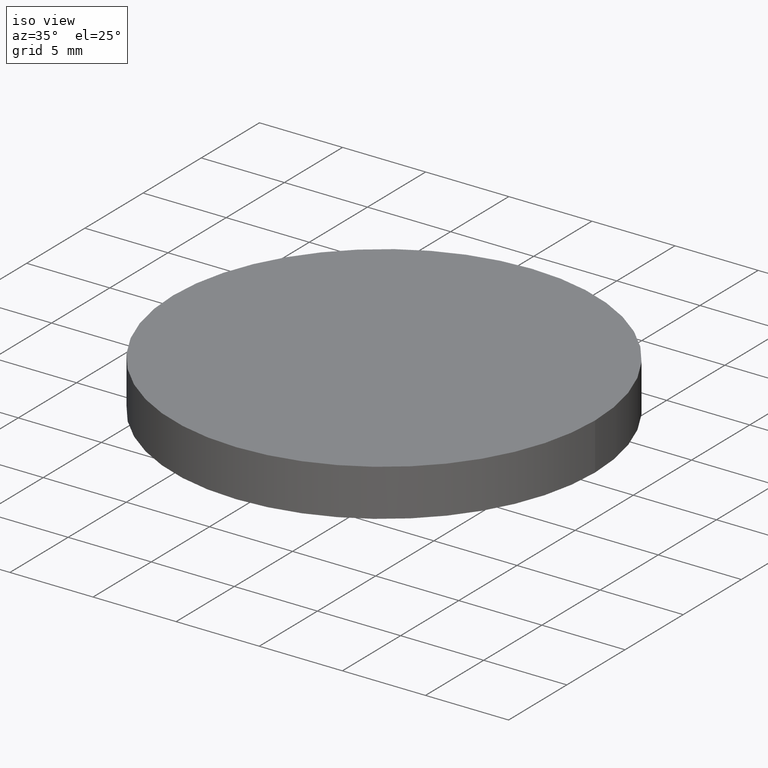
[diagram: clean part render]
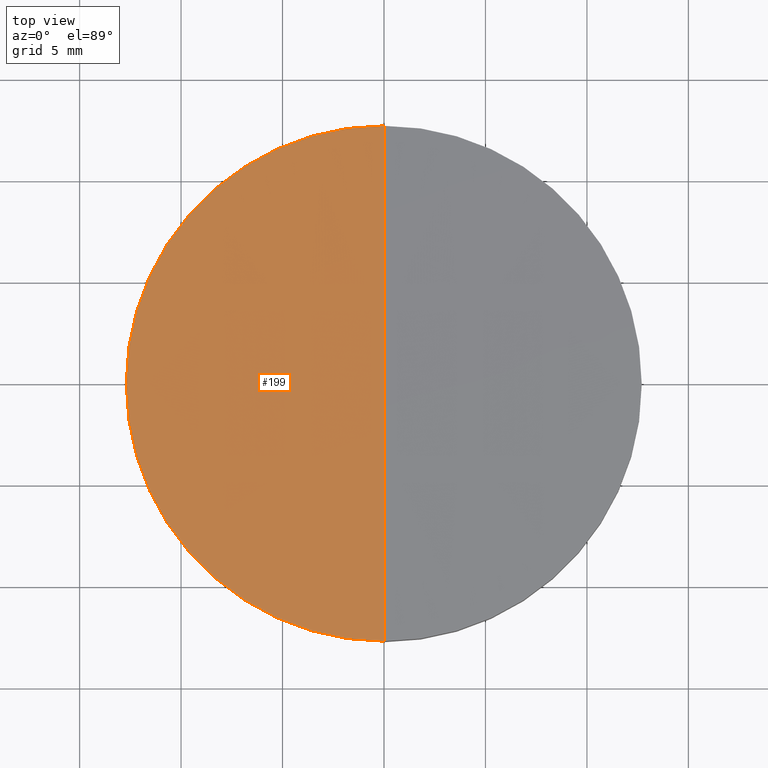
[diagram: tour spotlight — one face highlighted and labeled with its STEP entity id]
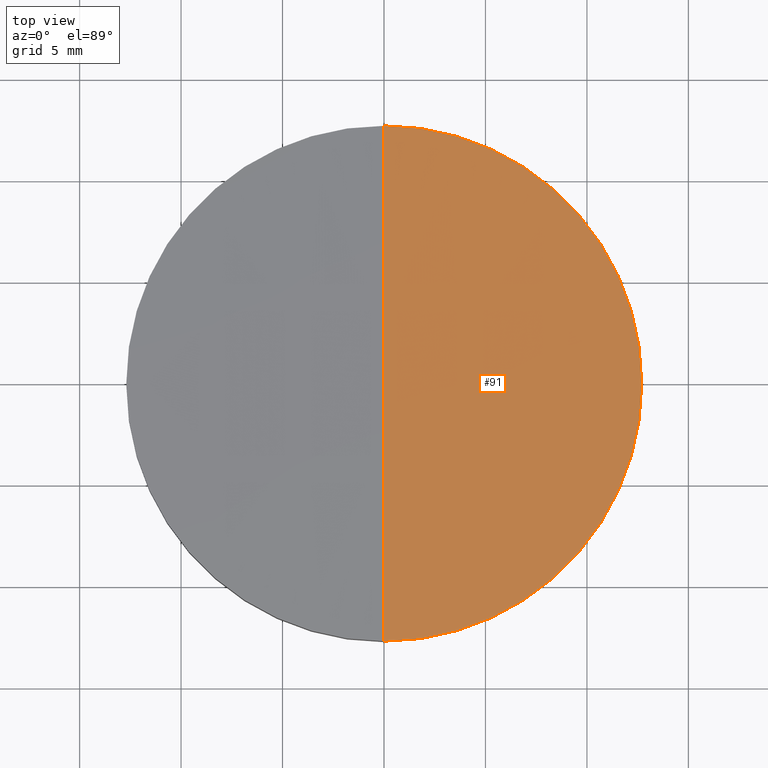
[diagram: tour spotlight — one face highlighted and labeled with its STEP entity id]
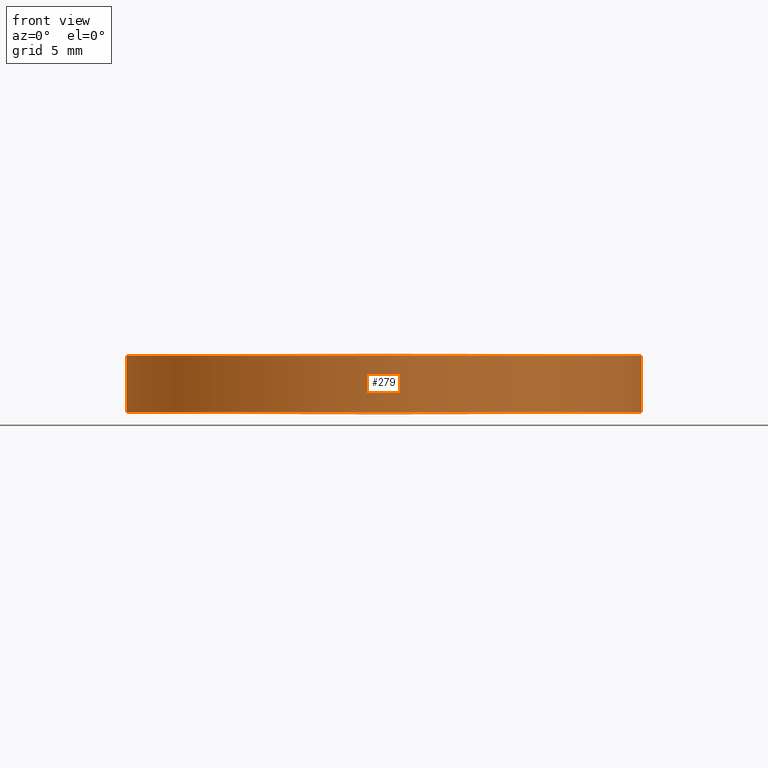
[diagram: tour spotlight — one face highlighted and labeled with its STEP entity id]
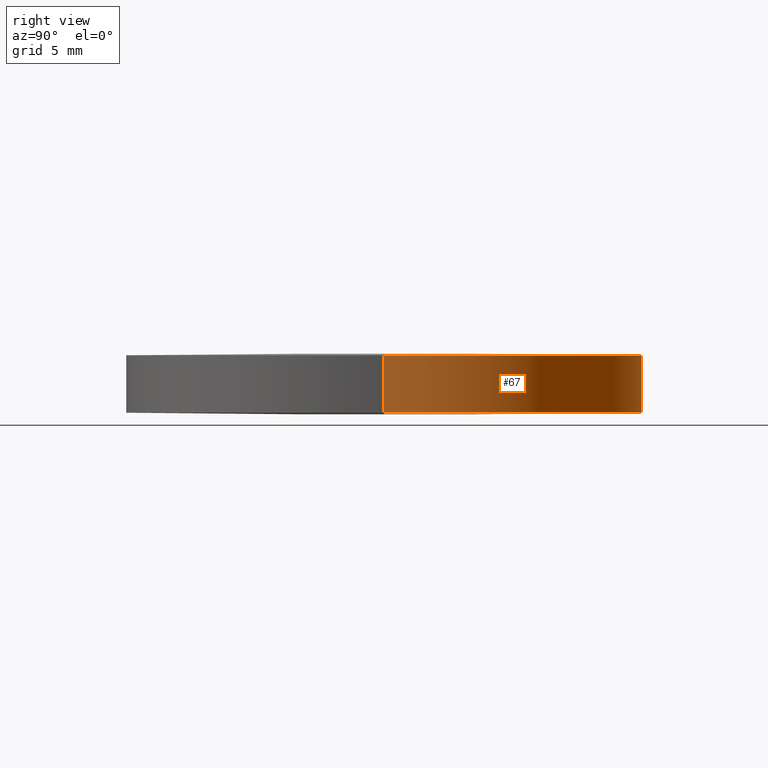
[diagram: tour spotlight — one face highlighted and labeled with its STEP entity id]
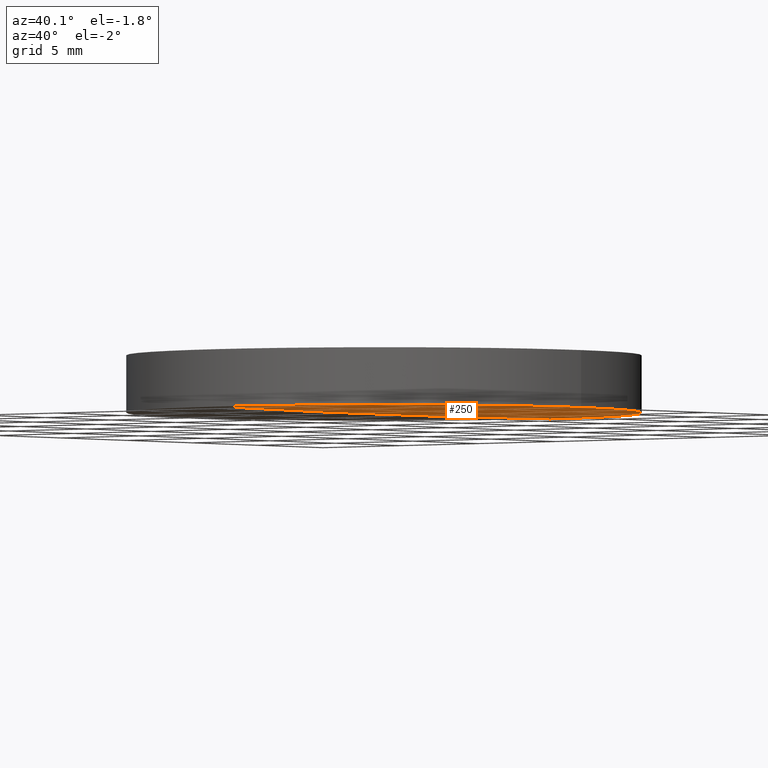
[diagram: tour spotlight — one face highlighted and labeled with its STEP entity id]
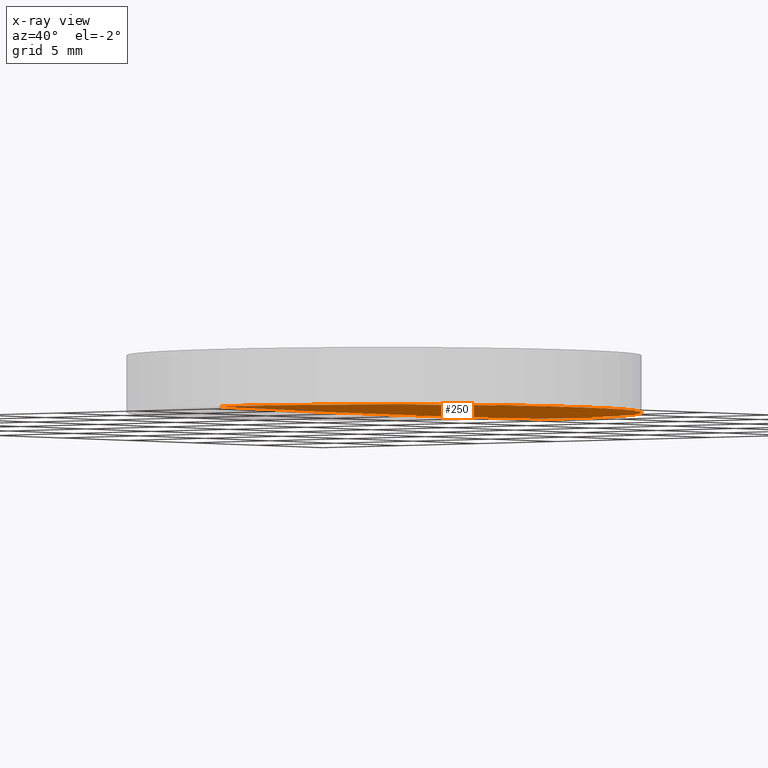
[diagram: x-ray of the same camera — body ghosted, this tour face saturated]
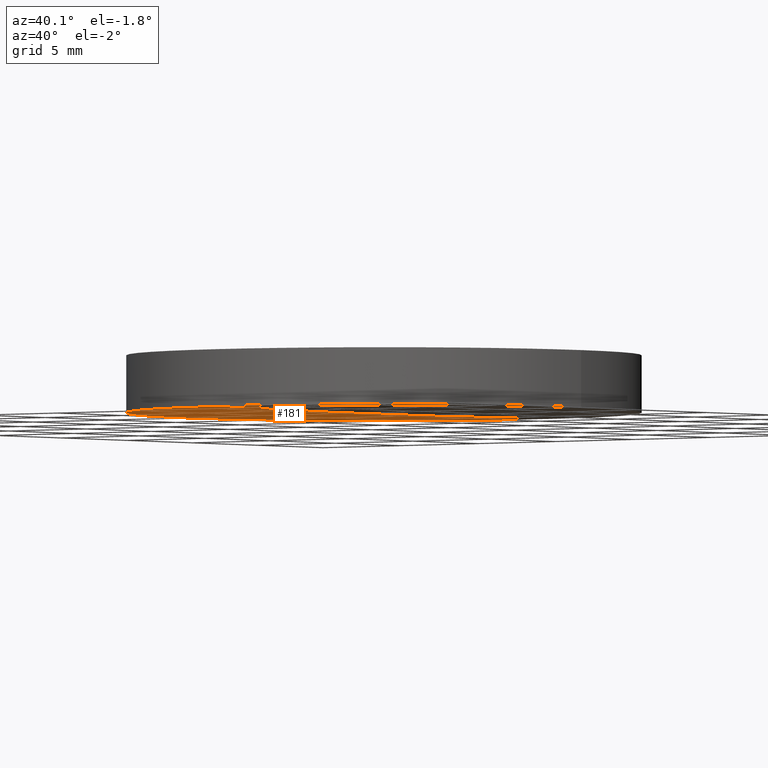
[diagram: tour spotlight — one face highlighted and labeled with its STEP entity id]
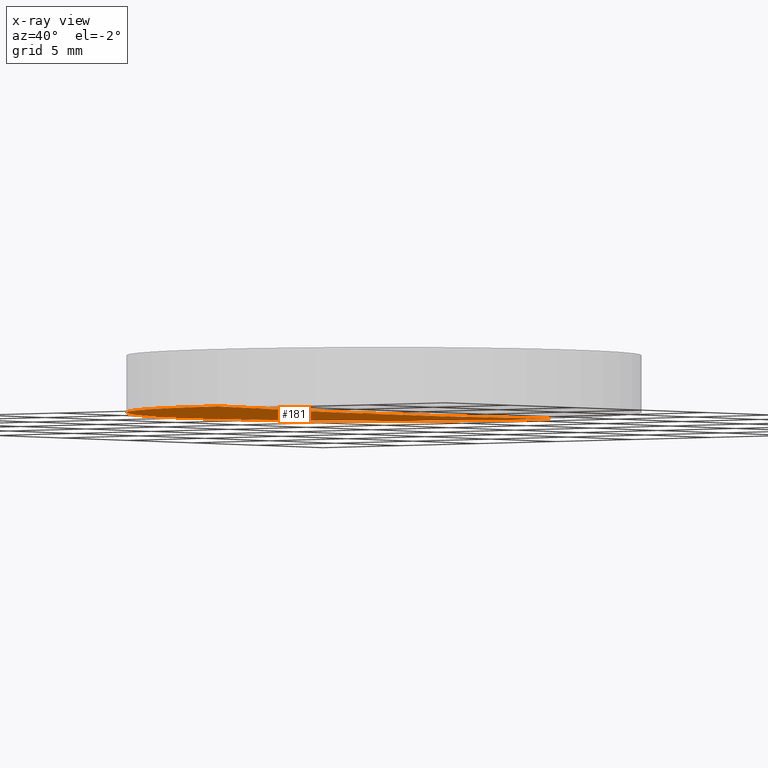
[diagram: x-ray of the same camera — body ghosted, this tour face saturated]
A machine part: a face-by-face anatomy tour. The part has 6 B-rep faces; the first image is the clean iso view, then the 6 largest visible faces are spotlighted one at a time (largest first), each with its STEP entity span.

Face 1 — top view, entity #199. In plain terms, the highlighted face is a freeform B-spline surface patch.
Definition (entity closure, byte-faithful):
#10 = CARTESIAN_POINT ( 'NONE',  ( 4.996003610813200500E-016, 2.442490654175340100E-015, 2.915258389649820100 ) ) ;
#45 = CARTESIAN_POINT ( 'NONE',  ( -12.69999999999999900, 3.997792089092478900E-015, 2.915258389649820100 ) ) ;
#48 = CARTESIAN_POINT ( 'NONE',  ( 0.0000000000000000000, -12.70000000000168900, 2.915258389649804100 ) ) ;
#51 = ORIENTED_EDGE ( 'NONE', *, *, #161, .F. ) ;
#52 = VERTEX_POINT ( 'NONE', #48 ) ;
#55 = CARTESIAN_POINT ( 'NONE',  ( -12.77658382230899300, -4.284390731756754900, 2.943166800276382200 ) ) ;
#59 = CARTESIAN_POINT ( 'NONE',  ( -4.258503345560082000, 12.85239078956250400, 2.913212419306642900 ) ) ;
#73 = EDGE_LOOP ( 'NONE', ( #51, #138, #287 ) ) ;
#77 = DIRECTION ( 'NONE',  ( -1.000000000000000000, 0.0000000000000000000, 0.0000000000000000000 ) ) ;
#97 = CARTESIAN_POINT ( 'NONE',  ( -8.517946429816911200, -4.284390731756754900, 3.000342472326801500 ) ) ;
#98 = CARTESIAN_POINT ( 'NONE',  ( -12.77658382230899300, 4.284390731757091500, 2.943166800276381300 ) ) ;
#116 = CARTESIAN_POINT ( 'NONE',  ( -8.517946429816911200, 4.284390731757091500, 3.000342472326800600 ) ) ;
#129 = CIRCLE ( 'NONE', #156, 12.69999999999999900 ) ;
#136 = AXIS2_PLACEMENT_3D ( 'NONE', #10, #261, #139 ) ;
#138 = ORIENTED_EDGE ( 'NONE', *, *, #252, .T. ) ;
#139 = DIRECTION ( 'NONE',  ( 1.000000000000000000, 0.0000000000000000000, 0.0000000000000000000 ) ) ;
#140 = DIRECTION ( 'NONE',  ( -0.0000000000000000000, -0.0000000000000000000, -1.000000000000000000 ) ) ;
#144 = CARTESIAN_POINT ( 'NONE',  ( 0.0000000000000000000, -12.85239078956216800, 2.913212419306643300 ) ) ;
#155 = VERTEX_POINT ( 'NONE', #45 ) ;
#156 = AXIS2_PLACEMENT_3D ( 'NONE', #283, #140, #211 ) ;
#160 = CARTESIAN_POINT ( 'NONE',  ( 0.0000000000000000000, 12.70000000000191800, 2.915258389649804100 ) ) ;
#161 = EDGE_CURVE ( 'NONE', #52, #155, #225, .T. ) ;
#162 = VERTEX_POINT ( 'NONE', #160 ) ;
#163 = CARTESIAN_POINT ( 'NONE',  ( -8.516910752289518900, -12.85239078956216800, 2.884627415225800000 ) ) ;
#165 = CARTESIAN_POINT ( 'NONE',  ( 0.0000000000000000000, 4.284390731757091500, 3.028930952415224800 ) ) ;
#172 = DIRECTION ( 'NONE',  ( 0.0000000000000000000, -1.000000000000000000, 0.0000000000000000000 ) ) ;
#175 = EDGE_CURVE ( 'NONE', #155, #162, #129, .T. ) ;
#185 = CARTESIAN_POINT ( 'NONE',  ( 0.0000000000000000000, 12.85239078956250600, 2.913212419306643300 ) ) ;
#187 = CARTESIAN_POINT ( 'NONE',  ( -4.258503345560082000, -12.85239078956216800, 2.913212419306642900 ) ) ;
#189 = CARTESIAN_POINT ( 'NONE',  ( -4.259021190156979700, 4.284390731757091500, 3.028930952415225300 ) ) ;
#191 = CARTESIAN_POINT ( 'NONE',  ( 0.0000000000000000000, 2.273736754432320100E-013, -948.7000000000000500 ) ) ;
#199 = ADVANCED_FACE ( 'NONE', ( #220 ), #206, .T. ) ;
#203 = CIRCLE ( 'NONE', #232, 951.7000000000000500 ) ;
#206 =( BOUNDED_SURFACE ( )  B_SPLINE_SURFACE ( 3, 3, ( 
 ( #144, #187, #163, #233 ),
 ( #240, #235, #97, #55 ),
 ( #165, #189, #116, #98 ),
 ( #185, #59, #213, #209 ) ),
 .UNSPECIFIED., .F., .F., .T. ) 
 B_SPLINE_SURFACE_WITH_KNOTS ( ( 4, 4 ),
 ( 4, 4 ),
 ( 0.0000000000000000000, 1.000000000000000000 ),
 ( 0.0000000000000000000, 1.000000000000000000 ),
 .UNSPECIFIED. ) 
 GEOMETRIC_REPRESENTATION_ITEM ( )  RATIONAL_B_SPLINE_SURFACE ( (
 ( 1.000000000000000000, 0.9999849808218425100, 0.9999849808218425100, 1.000000000000000000),
 ( 0.9999392052252507000, 0.9999241869601808200, 0.9999241869601808200, 0.9999392052252507000),
 ( 0.9999392052252507000, 0.9999241869601808200, 0.9999241869601808200, 0.9999392052252507000),
 ( 1.000000000000000000, 0.9999849808218425100, 0.9999849808218425100, 1.000000000000000000) ) ) 
 REPRESENTATION_ITEM ( '' )  SURFACE ( )  );
#209 = CARTESIAN_POINT ( 'NONE',  ( -12.77503034684978200, 12.85239078956250600, 2.827458695033924200 ) ) ;
#211 = DIRECTION ( 'NONE',  ( 1.000000000000000000, 0.0000000000000000000, 0.0000000000000000000 ) ) ;
#213 = CARTESIAN_POINT ( 'NONE',  ( -8.516910752289518900, 12.85239078956250400, 2.884627415225800000 ) ) ;
#220 = FACE_OUTER_BOUND ( 'NONE', #73, .T. ) ;
#225 = CIRCLE ( 'NONE', #136, 12.69999999999999900 ) ;
#232 = AXIS2_PLACEMENT_3D ( 'NONE', #191, #77, #172 ) ;
#233 = CARTESIAN_POINT ( 'NONE',  ( -12.77503034684978200, -12.85239078956216800, 2.827458695033924200 ) ) ;
#235 = CARTESIAN_POINT ( 'NONE',  ( -4.259021190156979700, -4.284390731756754900, 3.028930952415226100 ) ) ;
#240 = CARTESIAN_POINT ( 'NONE',  ( 0.0000000000000000000, -4.284390731756754900, 3.028930952415225700 ) ) ;
#252 = EDGE_CURVE ( 'NONE', #52, #162, #203, .T. ) ;
#261 = DIRECTION ( 'NONE',  ( -0.0000000000000000000, -0.0000000000000000000, -1.000000000000000000 ) ) ;
#283 = CARTESIAN_POINT ( 'NONE',  ( 4.996003610813200500E-016, 2.442490654175340100E-015, 2.915258389649820100 ) ) ;
#287 = ORIENTED_EDGE ( 'NONE', *, *, #175, .F. ) ;

Face 2 — top view, entity #91. In plain terms, the highlighted face is a freeform B-spline surface patch.
Definition (entity closure, byte-faithful):
#15 = CIRCLE ( 'NONE', #174, 12.69999999999999900 ) ;
#23 = CARTESIAN_POINT ( 'NONE',  ( 8.516910752289769300, -12.85239078956216800, 2.884627415225856900 ) ) ;
#25 =( BOUNDED_SURFACE ( )  B_SPLINE_SURFACE ( 3, 3, ( 
 ( #231, #23, #135, #112 ),
 ( #114, #49, #205, #88 ),
 ( #69, #256, #230, #257 ),
 ( #280, #202, #179, #276 ) ),
 .UNSPECIFIED., .F., .F., .F. ) 
 B_SPLINE_SURFACE_WITH_KNOTS ( ( 4, 4 ),
 ( 4, 4 ),
 ( 0.0000000000000000000, 1.000000000000000000 ),
 ( 0.0000000000000000000, 1.000000000000000000 ),
 .UNSPECIFIED. ) 
 GEOMETRIC_REPRESENTATION_ITEM ( )  RATIONAL_B_SPLINE_SURFACE ( (
 ( 1.000000000000000000, 0.9999849808218425100, 0.9999849808218425100, 1.000000000000000000),
 ( 0.9999392052252507000, 0.9999241869601808200, 0.9999241869601808200, 0.9999392052252507000),
 ( 0.9999392052252507000, 0.9999241869601808200, 0.9999241869601808200, 0.9999392052252507000),
 ( 1.000000000000000000, 0.9999849808218425100, 0.9999849808218425100, 1.000000000000000000) ) ) 
 REPRESENTATION_ITEM ( '' )  SURFACE ( )  );
#42 = AXIS2_PLACEMENT_3D ( 'NONE', #183, #87, #137 ) ;
#43 = VERTEX_POINT ( 'NONE', #157 ) ;
#46 = FACE_OUTER_BOUND ( 'NONE', #170, .T. ) ;
#48 = CARTESIAN_POINT ( 'NONE',  ( 0.0000000000000000000, -12.70000000000168900, 2.915258389649804100 ) ) ;
#49 = CARTESIAN_POINT ( 'NONE',  ( 8.517946429817161700, -4.284390731756754900, 3.000342472326858400 ) ) ;
#52 = VERTEX_POINT ( 'NONE', #48 ) ;
#53 = DIRECTION ( 'NONE',  ( 1.000000000000000000, 0.0000000000000000000, 0.0000000000000000000 ) ) ;
#69 = CARTESIAN_POINT ( 'NONE',  ( 12.77658382230925400, 4.284390731757091500, 2.943166800276436400 ) ) ;
#72 = CARTESIAN_POINT ( 'NONE',  ( 4.996003610813200500E-016, 2.442490654175340100E-015, 2.915258389649820100 ) ) ;
#77 = DIRECTION ( 'NONE',  ( -1.000000000000000000, 0.0000000000000000000, 0.0000000000000000000 ) ) ;
#78 = ORIENTED_EDGE ( 'NONE', *, *, #126, .F. ) ;
#87 = DIRECTION ( 'NONE',  ( -0.0000000000000000000, -0.0000000000000000000, -1.000000000000000000 ) ) ;
#88 = CARTESIAN_POINT ( 'NONE',  ( 2.307182223049153400E-013, -4.284390731756754900, 3.028930952415281200 ) ) ;
#91 = ADVANCED_FACE ( 'NONE', ( #46 ), #25, .T. ) ;
#100 = CIRCLE ( 'NONE', #42, 12.69999999999999900 ) ;
#112 = CARTESIAN_POINT ( 'NONE',  ( 2.307182223049153400E-013, -12.85239078956216800, 2.913212419306698800 ) ) ;
#113 = ORIENTED_EDGE ( 'NONE', *, *, #177, .F. ) ;
#114 = CARTESIAN_POINT ( 'NONE',  ( 12.77658382230925400, -4.284390731756754900, 2.943166800276437700 ) ) ;
#123 = ORIENTED_EDGE ( 'NONE', *, *, #252, .F. ) ;
#126 = EDGE_CURVE ( 'NONE', #43, #52, #100, .T. ) ;
#135 = CARTESIAN_POINT ( 'NONE',  ( 4.258503345560322700, -12.85239078956216800, 2.913212419306697500 ) ) ;
#137 = DIRECTION ( 'NONE',  ( 1.000000000000000000, 0.0000000000000000000, 0.0000000000000000000 ) ) ;
#157 = CARTESIAN_POINT ( 'NONE',  ( 12.69999999999999900, 2.442490654175340100E-015, 2.915258389649820100 ) ) ;
#160 = CARTESIAN_POINT ( 'NONE',  ( 0.0000000000000000000, 12.70000000000191800, 2.915258389649804100 ) ) ;
#162 = VERTEX_POINT ( 'NONE', #160 ) ;
#170 = EDGE_LOOP ( 'NONE', ( #123, #78, #113 ) ) ;
#172 = DIRECTION ( 'NONE',  ( 0.0000000000000000000, -1.000000000000000000, 0.0000000000000000000 ) ) ;
#174 = AXIS2_PLACEMENT_3D ( 'NONE', #72, #184, #53 ) ;
#177 = EDGE_CURVE ( 'NONE', #162, #43, #15, .T. ) ;
#179 = CARTESIAN_POINT ( 'NONE',  ( 4.258503345560322700, 12.85239078956250400, 2.913212419306697500 ) ) ;
#183 = CARTESIAN_POINT ( 'NONE',  ( 4.996003610813200500E-016, 2.442490654175340100E-015, 2.915258389649820100 ) ) ;
#184 = DIRECTION ( 'NONE',  ( -0.0000000000000000000, -0.0000000000000000000, -1.000000000000000000 ) ) ;
#191 = CARTESIAN_POINT ( 'NONE',  ( 0.0000000000000000000, 2.273736754432320100E-013, -948.7000000000000500 ) ) ;
#202 = CARTESIAN_POINT ( 'NONE',  ( 8.516910752289769300, 12.85239078956250400, 2.884627415225856900 ) ) ;
#203 = CIRCLE ( 'NONE', #232, 951.7000000000000500 ) ;
#205 = CARTESIAN_POINT ( 'NONE',  ( 4.259021190157219500, -4.284390731756754900, 3.028930952415280800 ) ) ;
#230 = CARTESIAN_POINT ( 'NONE',  ( 4.259021190157219500, 4.284390731757091500, 3.028930952415279400 ) ) ;
#231 = CARTESIAN_POINT ( 'NONE',  ( 12.77503034685004100, -12.85239078956216800, 2.827458695033979700 ) ) ;
#232 = AXIS2_PLACEMENT_3D ( 'NONE', #191, #77, #172 ) ;
#252 = EDGE_CURVE ( 'NONE', #52, #162, #203, .T. ) ;
#256 = CARTESIAN_POINT ( 'NONE',  ( 8.517946429817161700, 4.284390731757091500, 3.000342472326857000 ) ) ;
#257 = CARTESIAN_POINT ( 'NONE',  ( 2.307182223049153400E-013, 4.284390731757091500, 3.028930952415279900 ) ) ;
#276 = CARTESIAN_POINT ( 'NONE',  ( 2.307182223049153400E-013, 12.85239078956250600, 2.913212419306698800 ) ) ;
#280 = CARTESIAN_POINT ( 'NONE',  ( 12.77503034685004100, 12.85239078956250600, 2.827458695033979700 ) ) ;

Face 3 — front view, entity #279. In plain terms, the highlighted cylindrical surface (partial cylindrical patch) has radius 12.7 mm, axis along (0, 0, 1).
Definition (entity closure, byte-faithful):
#9 = ORIENTED_EDGE ( 'NONE', *, *, #70, .T. ) ;
#10 = CARTESIAN_POINT ( 'NONE',  ( 4.996003610813200500E-016, 2.442490654175340100E-015, 2.915258389649820100 ) ) ;
#13 = CARTESIAN_POINT ( 'NONE',  ( -12.69999999999999900, 3.997792089092478900E-015, 0.08474161035017510600 ) ) ;
#24 = LINE ( 'NONE', #68, #294 ) ;
#27 = CARTESIAN_POINT ( 'NONE',  ( -12.69999999999999900, 3.997792089092478900E-015, 0.08474161035017510600 ) ) ;
#41 = LINE ( 'NONE', #13, #154 ) ;
#42 = AXIS2_PLACEMENT_3D ( 'NONE', #183, #87, #137 ) ;
#43 = VERTEX_POINT ( 'NONE', #157 ) ;
#45 = CARTESIAN_POINT ( 'NONE',  ( -12.69999999999999900, 3.997792089092478900E-015, 2.915258389649820100 ) ) ;
#48 = CARTESIAN_POINT ( 'NONE',  ( 0.0000000000000000000, -12.70000000000168900, 2.915258389649804100 ) ) ;
#52 = VERTEX_POINT ( 'NONE', #48 ) ;
#60 = DIRECTION ( 'NONE',  ( 0.0000000000000000000, 0.0000000000000000000, 1.000000000000000000 ) ) ;
#68 = CARTESIAN_POINT ( 'NONE',  ( 12.69999999999999900, 2.442490654175340100E-015, 0.08474161035017510600 ) ) ;
#70 = EDGE_CURVE ( 'NONE', #274, #43, #24, .T. ) ;
#82 = CIRCLE ( 'NONE', #131, 12.69999999999999900 ) ;
#87 = DIRECTION ( 'NONE',  ( -0.0000000000000000000, -0.0000000000000000000, -1.000000000000000000 ) ) ;
#100 = CIRCLE ( 'NONE', #42, 12.69999999999999900 ) ;
#102 = ORIENTED_EDGE ( 'NONE', *, *, #284, .F. ) ;
#103 = DIRECTION ( 'NONE',  ( 1.000000000000000000, 0.0000000000000000000, 0.0000000000000000000 ) ) ;
#107 = VERTEX_POINT ( 'NONE', #27 ) ;
#109 = ORIENTED_EDGE ( 'NONE', *, *, #161, .T. ) ;
#120 = DIRECTION ( 'NONE',  ( 1.000000000000000000, 0.0000000000000000000, 0.0000000000000000000 ) ) ;
#125 = DIRECTION ( 'NONE',  ( -0.0000000000000000000, -0.0000000000000000000, -1.000000000000000000 ) ) ;
#126 = EDGE_CURVE ( 'NONE', #43, #52, #100, .T. ) ;
#131 = AXIS2_PLACEMENT_3D ( 'NONE', #290, #125, #103 ) ;
#136 = AXIS2_PLACEMENT_3D ( 'NONE', #10, #261, #139 ) ;
#137 = DIRECTION ( 'NONE',  ( 1.000000000000000000, 0.0000000000000000000, 0.0000000000000000000 ) ) ;
#139 = DIRECTION ( 'NONE',  ( 1.000000000000000000, 0.0000000000000000000, 0.0000000000000000000 ) ) ;
#142 = CIRCLE ( 'NONE', #227, 12.69999999999999900 ) ;
#146 = CYLINDRICAL_SURFACE ( 'NONE', #197, 12.69999999999999900 ) ;
#148 = DIRECTION ( 'NONE',  ( 0.0000000000000000000, 0.0000000000000000000, 1.000000000000000000 ) ) ;
#154 = VECTOR ( 'NONE', #148, 1000.000000000000000 ) ;
#155 = VERTEX_POINT ( 'NONE', #45 ) ;
#157 = CARTESIAN_POINT ( 'NONE',  ( 12.69999999999999900, 2.442490654175340100E-015, 2.915258389649820100 ) ) ;
#161 = EDGE_CURVE ( 'NONE', #52, #155, #225, .T. ) ;
#171 = ORIENTED_EDGE ( 'NONE', *, *, #251, .F. ) ;
#183 = CARTESIAN_POINT ( 'NONE',  ( 4.996003610813200500E-016, 2.442490654175340100E-015, 2.915258389649820100 ) ) ;
#197 = AXIS2_PLACEMENT_3D ( 'NONE', #271, #60, #241 ) ;
#200 = VERTEX_POINT ( 'NONE', #234 ) ;
#208 = EDGE_CURVE ( 'NONE', #200, #107, #142, .T. ) ;
#225 = CIRCLE ( 'NONE', #136, 12.69999999999999900 ) ;
#226 = ORIENTED_EDGE ( 'NONE', *, *, #126, .T. ) ;
#227 = AXIS2_PLACEMENT_3D ( 'NONE', #285, #237, #120 ) ;
#228 = EDGE_LOOP ( 'NONE', ( #171, #243, #102, #9, #226, #109 ) ) ;
#234 = CARTESIAN_POINT ( 'NONE',  ( 0.0000000000000000000, -12.70000000000168900, 0.08474161035019461800 ) ) ;
#237 = DIRECTION ( 'NONE',  ( -0.0000000000000000000, -0.0000000000000000000, -1.000000000000000000 ) ) ;
#241 = DIRECTION ( 'NONE',  ( 1.000000000000000000, 0.0000000000000000000, 0.0000000000000000000 ) ) ;
#243 = ORIENTED_EDGE ( 'NONE', *, *, #208, .F. ) ;
#251 = EDGE_CURVE ( 'NONE', #107, #155, #41, .T. ) ;
#261 = DIRECTION ( 'NONE',  ( -0.0000000000000000000, -0.0000000000000000000, -1.000000000000000000 ) ) ;
#263 = CARTESIAN_POINT ( 'NONE',  ( 12.69999999999999900, 2.442490654175340100E-015, 0.08474161035017510600 ) ) ;
#271 = CARTESIAN_POINT ( 'NONE',  ( 4.996003610813200500E-016, 2.442490654175340100E-015, 0.08474161035017510600 ) ) ;
#274 = VERTEX_POINT ( 'NONE', #263 ) ;
#277 = FACE_OUTER_BOUND ( 'NONE', #228, .T. ) ;
#278 = DIRECTION ( 'NONE',  ( 0.0000000000000000000, 0.0000000000000000000, 1.000000000000000000 ) ) ;
#279 = ADVANCED_FACE ( 'NONE', ( #277 ), #146, .T. ) ;
#284 = EDGE_CURVE ( 'NONE', #274, #200, #82, .T. ) ;
#285 = CARTESIAN_POINT ( 'NONE',  ( 4.996003610813200500E-016, 2.442490654175340100E-015, 0.08474161035017510600 ) ) ;
#290 = CARTESIAN_POINT ( 'NONE',  ( 4.996003610813200500E-016, 2.442490654175340100E-015, 0.08474161035017510600 ) ) ;
#294 = VECTOR ( 'NONE', #278, 1000.000000000000000 ) ;

Face 4 — right view, entity #67. In plain terms, the highlighted cylindrical surface (partial cylindrical patch) has radius 12.7 mm, axis along (0, 0, 1).
Definition (entity closure, byte-faithful):
#2 = DIRECTION ( 'NONE',  ( 1.000000000000000000, 0.0000000000000000000, 0.0000000000000000000 ) ) ;
#3 = DIRECTION ( 'NONE',  ( 1.000000000000000000, 0.0000000000000000000, 0.0000000000000000000 ) ) ;
#5 = DIRECTION ( 'NONE',  ( -0.0000000000000000000, -0.0000000000000000000, -1.000000000000000000 ) ) ;
#13 = CARTESIAN_POINT ( 'NONE',  ( -12.69999999999999900, 3.997792089092478900E-015, 0.08474161035017510600 ) ) ;
#15 = CIRCLE ( 'NONE', #174, 12.69999999999999900 ) ;
#19 = CIRCLE ( 'NONE', #186, 12.69999999999999900 ) ;
#22 = CARTESIAN_POINT ( 'NONE',  ( 4.996003610813200500E-016, 2.442490654175340100E-015, 0.08474161035017510600 ) ) ;
#24 = LINE ( 'NONE', #68, #294 ) ;
#27 = CARTESIAN_POINT ( 'NONE',  ( -12.69999999999999900, 3.997792089092478900E-015, 0.08474161035017510600 ) ) ;
#41 = LINE ( 'NONE', #13, #154 ) ;
#43 = VERTEX_POINT ( 'NONE', #157 ) ;
#44 = AXIS2_PLACEMENT_3D ( 'NONE', #275, #133, #2 ) ;
#45 = CARTESIAN_POINT ( 'NONE',  ( -12.69999999999999900, 3.997792089092478900E-015, 2.915258389649820100 ) ) ;
#53 = DIRECTION ( 'NONE',  ( 1.000000000000000000, 0.0000000000000000000, 0.0000000000000000000 ) ) ;
#58 = ORIENTED_EDGE ( 'NONE', *, *, #177, .T. ) ;
#67 = ADVANCED_FACE ( 'NONE', ( #229 ), #121, .T. ) ;
#68 = CARTESIAN_POINT ( 'NONE',  ( 12.69999999999999900, 2.442490654175340100E-015, 0.08474161035017510600 ) ) ;
#70 = EDGE_CURVE ( 'NONE', #274, #43, #24, .T. ) ;
#72 = CARTESIAN_POINT ( 'NONE',  ( 4.996003610813200500E-016, 2.442490654175340100E-015, 2.915258389649820100 ) ) ;
#79 = ORIENTED_EDGE ( 'NONE', *, *, #95, .F. ) ;
#90 = DIRECTION ( 'NONE',  ( 1.000000000000000000, 0.0000000000000000000, 0.0000000000000000000 ) ) ;
#95 = EDGE_CURVE ( 'NONE', #107, #96, #19, .T. ) ;
#96 = VERTEX_POINT ( 'NONE', #180 ) ;
#107 = VERTEX_POINT ( 'NONE', #27 ) ;
#121 = CYLINDRICAL_SURFACE ( 'NONE', #141, 12.69999999999999900 ) ;
#129 = CIRCLE ( 'NONE', #156, 12.69999999999999900 ) ;
#133 = DIRECTION ( 'NONE',  ( -0.0000000000000000000, -0.0000000000000000000, -1.000000000000000000 ) ) ;
#134 = DIRECTION ( 'NONE',  ( 0.0000000000000000000, 0.0000000000000000000, 1.000000000000000000 ) ) ;
#140 = DIRECTION ( 'NONE',  ( -0.0000000000000000000, -0.0000000000000000000, -1.000000000000000000 ) ) ;
#141 = AXIS2_PLACEMENT_3D ( 'NONE', #255, #134, #3 ) ;
#145 = EDGE_CURVE ( 'NONE', #96, #274, #147, .T. ) ;
#147 = CIRCLE ( 'NONE', #44, 12.69999999999999900 ) ;
#148 = DIRECTION ( 'NONE',  ( 0.0000000000000000000, 0.0000000000000000000, 1.000000000000000000 ) ) ;
#153 = ORIENTED_EDGE ( 'NONE', *, *, #145, .F. ) ;
#154 = VECTOR ( 'NONE', #148, 1000.000000000000000 ) ;
#155 = VERTEX_POINT ( 'NONE', #45 ) ;
#156 = AXIS2_PLACEMENT_3D ( 'NONE', #283, #140, #211 ) ;
#157 = CARTESIAN_POINT ( 'NONE',  ( 12.69999999999999900, 2.442490654175340100E-015, 2.915258389649820100 ) ) ;
#160 = CARTESIAN_POINT ( 'NONE',  ( 0.0000000000000000000, 12.70000000000191800, 2.915258389649804100 ) ) ;
#162 = VERTEX_POINT ( 'NONE', #160 ) ;
#174 = AXIS2_PLACEMENT_3D ( 'NONE', #72, #184, #53 ) ;
#175 = EDGE_CURVE ( 'NONE', #155, #162, #129, .T. ) ;
#177 = EDGE_CURVE ( 'NONE', #162, #43, #15, .T. ) ;
#180 = CARTESIAN_POINT ( 'NONE',  ( 0.0000000000000000000, 12.70000000000191800, 0.08474161035019461800 ) ) ;
#182 = ORIENTED_EDGE ( 'NONE', *, *, #70, .F. ) ;
#184 = DIRECTION ( 'NONE',  ( -0.0000000000000000000, -0.0000000000000000000, -1.000000000000000000 ) ) ;
#186 = AXIS2_PLACEMENT_3D ( 'NONE', #22, #5, #90 ) ;
#204 = EDGE_LOOP ( 'NONE', ( #79, #214, #267, #58, #182, #153 ) ) ;
#211 = DIRECTION ( 'NONE',  ( 1.000000000000000000, 0.0000000000000000000, 0.0000000000000000000 ) ) ;
#214 = ORIENTED_EDGE ( 'NONE', *, *, #251, .T. ) ;
#229 = FACE_OUTER_BOUND ( 'NONE', #204, .T. ) ;
#251 = EDGE_CURVE ( 'NONE', #107, #155, #41, .T. ) ;
#255 = CARTESIAN_POINT ( 'NONE',  ( 4.996003610813200500E-016, 2.442490654175340100E-015, 0.08474161035017510600 ) ) ;
#263 = CARTESIAN_POINT ( 'NONE',  ( 12.69999999999999900, 2.442490654175340100E-015, 0.08474161035017510600 ) ) ;
#267 = ORIENTED_EDGE ( 'NONE', *, *, #175, .T. ) ;
#274 = VERTEX_POINT ( 'NONE', #263 ) ;
#275 = CARTESIAN_POINT ( 'NONE',  ( 4.996003610813200500E-016, 2.442490654175340100E-015, 0.08474161035017510600 ) ) ;
#278 = DIRECTION ( 'NONE',  ( 0.0000000000000000000, 0.0000000000000000000, 1.000000000000000000 ) ) ;
#283 = CARTESIAN_POINT ( 'NONE',  ( 4.996003610813200500E-016, 2.442490654175340100E-015, 2.915258389649820100 ) ) ;
#294 = VECTOR ( 'NONE', #278, 1000.000000000000000 ) ;

Face 5 — auxiliary view, entity #250. An x-ray twin of the same camera follows (body ghosted, this face saturated) — the face is partly hidden behind the body. In plain terms, the highlighted face is a freeform B-spline surface patch.
Definition (entity closure, byte-faithful):
#2 = DIRECTION ( 'NONE',  ( 1.000000000000000000, 0.0000000000000000000, 0.0000000000000000000 ) ) ;
#35 = CARTESIAN_POINT ( 'NONE',  ( 12.77658382230899300, 4.284390731757091500, 0.05683319972362106000 ) ) ;
#44 = AXIS2_PLACEMENT_3D ( 'NONE', #275, #133, #2 ) ;
#56 = CARTESIAN_POINT ( 'NONE',  ( 4.258503345560082000, -12.85239078956216800, 0.08678758069335934500 ) ) ;
#66 = DIRECTION ( 'NONE',  ( 0.0000000000000000000, -1.000000000000000000, 0.0000000000000000000 ) ) ;
#71 = DIRECTION ( 'NONE',  ( 1.000000000000000000, 0.0000000000000000000, 0.0000000000000000000 ) ) ;
#74 = CARTESIAN_POINT ( 'NONE',  ( 8.516910752289517100, -12.85239078956216800, 0.1153725847742025100 ) ) ;
#76 = CARTESIAN_POINT ( 'NONE',  ( 0.0000000000000000000, -12.85239078956216800, 0.08678758069335934500 ) ) ;
#80 = CARTESIAN_POINT ( 'NONE',  ( 0.0000000000000000000, -4.284390731756754900, -0.02893095241522345200 ) ) ;
#81 = CARTESIAN_POINT ( 'NONE',  ( 8.517946429816911200, -4.284390731756754900, -0.0003424723267986693700 ) ) ;
#82 = CIRCLE ( 'NONE', #131, 12.69999999999999900 ) ;
#85 =( BOUNDED_SURFACE ( )  B_SPLINE_SURFACE ( 3, 3, ( 
 ( #76, #56, #74, #118 ),
 ( #80, #217, #81, #152 ),
 ( #192, #168, #268, #35 ),
 ( #194, #215, #221, #246 ) ),
 .UNSPECIFIED., .F., .F., .F. ) 
 B_SPLINE_SURFACE_WITH_KNOTS ( ( 4, 4 ),
 ( 4, 4 ),
 ( 0.0000000000000000000, 1.000000000000000000 ),
 ( 0.0000000000000000000, 1.000000000000000000 ),
 .UNSPECIFIED. ) 
 GEOMETRIC_REPRESENTATION_ITEM ( )  RATIONAL_B_SPLINE_SURFACE ( (
 ( 1.000000000000000000, 0.9999849808218425100, 0.9999849808218425100, 1.000000000000000000),
 ( 0.9999392052252507000, 0.9999241869601808200, 0.9999241869601808200, 0.9999392052252507000),
 ( 0.9999392052252507000, 0.9999241869601808200, 0.9999241869601808200, 0.9999392052252507000),
 ( 1.000000000000000000, 0.9999849808218425100, 0.9999849808218425100, 1.000000000000000000) ) ) 
 REPRESENTATION_ITEM ( '' )  SURFACE ( )  );
#94 = FACE_OUTER_BOUND ( 'NONE', #239, .T. ) ;
#96 = VERTEX_POINT ( 'NONE', #180 ) ;
#103 = DIRECTION ( 'NONE',  ( 1.000000000000000000, 0.0000000000000000000, 0.0000000000000000000 ) ) ;
#104 = AXIS2_PLACEMENT_3D ( 'NONE', #207, #71, #66 ) ;
#118 = CARTESIAN_POINT ( 'NONE',  ( 12.77503034684978200, -12.85239078956216800, 0.1725413049660782800 ) ) ;
#125 = DIRECTION ( 'NONE',  ( -0.0000000000000000000, -0.0000000000000000000, -1.000000000000000000 ) ) ;
#127 = EDGE_CURVE ( 'NONE', #200, #96, #159, .T. ) ;
#130 = ORIENTED_EDGE ( 'NONE', *, *, #145, .T. ) ;
#131 = AXIS2_PLACEMENT_3D ( 'NONE', #290, #125, #103 ) ;
#133 = DIRECTION ( 'NONE',  ( -0.0000000000000000000, -0.0000000000000000000, -1.000000000000000000 ) ) ;
#145 = EDGE_CURVE ( 'NONE', #96, #274, #147, .T. ) ;
#147 = CIRCLE ( 'NONE', #44, 12.69999999999999900 ) ;
#152 = CARTESIAN_POINT ( 'NONE',  ( 12.77658382230899300, -4.284390731756754900, 0.05683319972362000500 ) ) ;
#159 = CIRCLE ( 'NONE', #104, 951.7000000000000500 ) ;
#168 = CARTESIAN_POINT ( 'NONE',  ( 4.259021190156979700, 4.284390731757091500, -0.02893095241522240100 ) ) ;
#180 = CARTESIAN_POINT ( 'NONE',  ( 0.0000000000000000000, 12.70000000000191800, 0.08474161035019461800 ) ) ;
#192 = CARTESIAN_POINT ( 'NONE',  ( 0.0000000000000000000, 4.284390731757091500, -0.02893095241522239400 ) ) ;
#194 = CARTESIAN_POINT ( 'NONE',  ( 0.0000000000000000000, 12.85239078956250600, 0.08678758069335934500 ) ) ;
#200 = VERTEX_POINT ( 'NONE', #234 ) ;
#207 = CARTESIAN_POINT ( 'NONE',  ( 0.0000000000000000000, 2.273736754432320100E-013, 951.7000000000000500 ) ) ;
#215 = CARTESIAN_POINT ( 'NONE',  ( 4.258503345560082000, 12.85239078956250400, 0.08678758069335934500 ) ) ;
#217 = CARTESIAN_POINT ( 'NONE',  ( 4.259021190156979700, -4.284390731756754900, -0.02893095241522345600 ) ) ;
#221 = CARTESIAN_POINT ( 'NONE',  ( 8.516910752289517100, 12.85239078956250400, 0.1153725847742025100 ) ) ;
#234 = CARTESIAN_POINT ( 'NONE',  ( 0.0000000000000000000, -12.70000000000168900, 0.08474161035019461800 ) ) ;
#239 = EDGE_LOOP ( 'NONE', ( #282, #260, #130 ) ) ;
#246 = CARTESIAN_POINT ( 'NONE',  ( 12.77503034684978200, 12.85239078956250600, 0.1725413049660782800 ) ) ;
#250 = ADVANCED_FACE ( 'NONE', ( #94 ), #85, .T. ) ;
#260 = ORIENTED_EDGE ( 'NONE', *, *, #127, .T. ) ;
#263 = CARTESIAN_POINT ( 'NONE',  ( 12.69999999999999900, 2.442490654175340100E-015, 0.08474161035017510600 ) ) ;
#268 = CARTESIAN_POINT ( 'NONE',  ( 8.517946429816911200, 4.284390731757091500, -0.0003424723267976122700 ) ) ;
#274 = VERTEX_POINT ( 'NONE', #263 ) ;
#275 = CARTESIAN_POINT ( 'NONE',  ( 4.996003610813200500E-016, 2.442490654175340100E-015, 0.08474161035017510600 ) ) ;
#282 = ORIENTED_EDGE ( 'NONE', *, *, #284, .T. ) ;
#284 = EDGE_CURVE ( 'NONE', #274, #200, #82, .T. ) ;
#290 = CARTESIAN_POINT ( 'NONE',  ( 4.996003610813200500E-016, 2.442490654175340100E-015, 0.08474161035017510600 ) ) ;

Face 6 — auxiliary view, entity #181. An x-ray twin of the same camera follows (body ghosted, this face saturated) — the face is partly hidden behind the body. In plain terms, the highlighted face is a freeform B-spline surface patch.
Definition (entity closure, byte-faithful):
#5 = DIRECTION ( 'NONE',  ( -0.0000000000000000000, -0.0000000000000000000, -1.000000000000000000 ) ) ;
#7 = CARTESIAN_POINT ( 'NONE',  ( -4.258503345560322700, -12.85239078956216800, 0.08678758069330495800 ) ) ;
#11 = CARTESIAN_POINT ( 'NONE',  ( -12.77658382230925400, -4.284390731756754900, 0.05683319972356466000 ) ) ;
#19 = CIRCLE ( 'NONE', #186, 12.69999999999999900 ) ;
#22 = CARTESIAN_POINT ( 'NONE',  ( 4.996003610813200500E-016, 2.442490654175340100E-015, 0.08474161035017510600 ) ) ;
#27 = CARTESIAN_POINT ( 'NONE',  ( -12.69999999999999900, 3.997792089092478900E-015, 0.08474161035017510600 ) ) ;
#28 = CARTESIAN_POINT ( 'NONE',  ( -8.517946429817161700, 4.284390731757091500, -0.0003424723268542347300 ) ) ;
#29 = CARTESIAN_POINT ( 'NONE',  ( -4.259021190157219500, -4.284390731756754900, -0.02893095241527783200 ) ) ;
#31 = CARTESIAN_POINT ( 'NONE',  ( -2.307182223049153400E-013, 12.85239078956250600, 0.08678758069330393100 ) ) ;
#33 = CARTESIAN_POINT ( 'NONE',  ( -12.77658382230925400, 4.284390731757091500, 0.05683319972356571500 ) ) ;
#65 = ORIENTED_EDGE ( 'NONE', *, *, #127, .F. ) ;
#66 = DIRECTION ( 'NONE',  ( 0.0000000000000000000, -1.000000000000000000, 0.0000000000000000000 ) ) ;
#71 = DIRECTION ( 'NONE',  ( 1.000000000000000000, 0.0000000000000000000, 0.0000000000000000000 ) ) ;
#83 = ORIENTED_EDGE ( 'NONE', *, *, #208, .T. ) ;
#90 = DIRECTION ( 'NONE',  ( 1.000000000000000000, 0.0000000000000000000, 0.0000000000000000000 ) ) ;
#92 = CARTESIAN_POINT ( 'NONE',  ( -8.516910752289769300, 12.85239078956250400, 0.1153725847741458700 ) ) ;
#93 = CARTESIAN_POINT ( 'NONE',  ( -8.516910752289769300, -12.85239078956216800, 0.1153725847741458700 ) ) ;
#95 = EDGE_CURVE ( 'NONE', #107, #96, #19, .T. ) ;
#96 = VERTEX_POINT ( 'NONE', #180 ) ;
#104 = AXIS2_PLACEMENT_3D ( 'NONE', #207, #71, #66 ) ;
#107 = VERTEX_POINT ( 'NONE', #27 ) ;
#110 =( BOUNDED_SURFACE ( )  B_SPLINE_SURFACE ( 3, 3, ( 
 ( #212, #93, #7, #264 ),
 ( #11, #167, #29, #164 ),
 ( #33, #28, #117, #281 ),
 ( #143, #92, #190, #31 ) ),
 .UNSPECIFIED., .F., .F., .T. ) 
 B_SPLINE_SURFACE_WITH_KNOTS ( ( 4, 4 ),
 ( 4, 4 ),
 ( 0.0000000000000000000, 1.000000000000000000 ),
 ( 0.0000000000000000000, 1.000000000000000000 ),
 .UNSPECIFIED. ) 
 GEOMETRIC_REPRESENTATION_ITEM ( )  RATIONAL_B_SPLINE_SURFACE ( (
 ( 1.000000000000000000, 0.9999849808218425100, 0.9999849808218425100, 1.000000000000000000),
 ( 0.9999392052252507000, 0.9999241869601808200, 0.9999241869601808200, 0.9999392052252507000),
 ( 0.9999392052252507000, 0.9999241869601808200, 0.9999241869601808200, 0.9999392052252507000),
 ( 1.000000000000000000, 0.9999849808218425100, 0.9999849808218425100, 1.000000000000000000) ) ) 
 REPRESENTATION_ITEM ( '' )  SURFACE ( )  );
#117 = CARTESIAN_POINT ( 'NONE',  ( -4.259021190157219500, 4.284390731757091500, -0.02893095241527677400 ) ) ;
#120 = DIRECTION ( 'NONE',  ( 1.000000000000000000, 0.0000000000000000000, 0.0000000000000000000 ) ) ;
#127 = EDGE_CURVE ( 'NONE', #200, #96, #159, .T. ) ;
#142 = CIRCLE ( 'NONE', #227, 12.69999999999999900 ) ;
#143 = CARTESIAN_POINT ( 'NONE',  ( -12.77503034685004100, 12.85239078956250600, 0.1725413049660229300 ) ) ;
#159 = CIRCLE ( 'NONE', #104, 951.7000000000000500 ) ;
#164 = CARTESIAN_POINT ( 'NONE',  ( -2.307182223049153400E-013, -4.284390731756754900, -0.02893095241527887000 ) ) ;
#167 = CARTESIAN_POINT ( 'NONE',  ( -8.517946429817161700, -4.284390731756754900, -0.0003424723268552918300 ) ) ;
#180 = CARTESIAN_POINT ( 'NONE',  ( 0.0000000000000000000, 12.70000000000191800, 0.08474161035019461800 ) ) ;
#181 = ADVANCED_FACE ( 'NONE', ( #259 ), #110, .T. ) ;
#186 = AXIS2_PLACEMENT_3D ( 'NONE', #22, #5, #90 ) ;
#190 = CARTESIAN_POINT ( 'NONE',  ( -4.258503345560322700, 12.85239078956250400, 0.08678758069330495800 ) ) ;
#200 = VERTEX_POINT ( 'NONE', #234 ) ;
#207 = CARTESIAN_POINT ( 'NONE',  ( 0.0000000000000000000, 2.273736754432320100E-013, 951.7000000000000500 ) ) ;
#208 = EDGE_CURVE ( 'NONE', #200, #107, #142, .T. ) ;
#212 = CARTESIAN_POINT ( 'NONE',  ( -12.77503034685004100, -12.85239078956216800, 0.1725413049660229300 ) ) ;
#222 = ORIENTED_EDGE ( 'NONE', *, *, #95, .T. ) ;
#227 = AXIS2_PLACEMENT_3D ( 'NONE', #285, #237, #120 ) ;
#234 = CARTESIAN_POINT ( 'NONE',  ( 0.0000000000000000000, -12.70000000000168900, 0.08474161035019461800 ) ) ;
#237 = DIRECTION ( 'NONE',  ( -0.0000000000000000000, -0.0000000000000000000, -1.000000000000000000 ) ) ;
#259 = FACE_OUTER_BOUND ( 'NONE', #272, .T. ) ;
#264 = CARTESIAN_POINT ( 'NONE',  ( -2.307182223049153400E-013, -12.85239078956216800, 0.08678758069330393100 ) ) ;
#272 = EDGE_LOOP ( 'NONE', ( #65, #83, #222 ) ) ;
#281 = CARTESIAN_POINT ( 'NONE',  ( -2.307182223049153400E-013, 4.284390731757091500, -0.02893095241527781200 ) ) ;
#285 = CARTESIAN_POINT ( 'NONE',  ( 4.996003610813200500E-016, 2.442490654175340100E-015, 0.08474161035017510600 ) ) ;